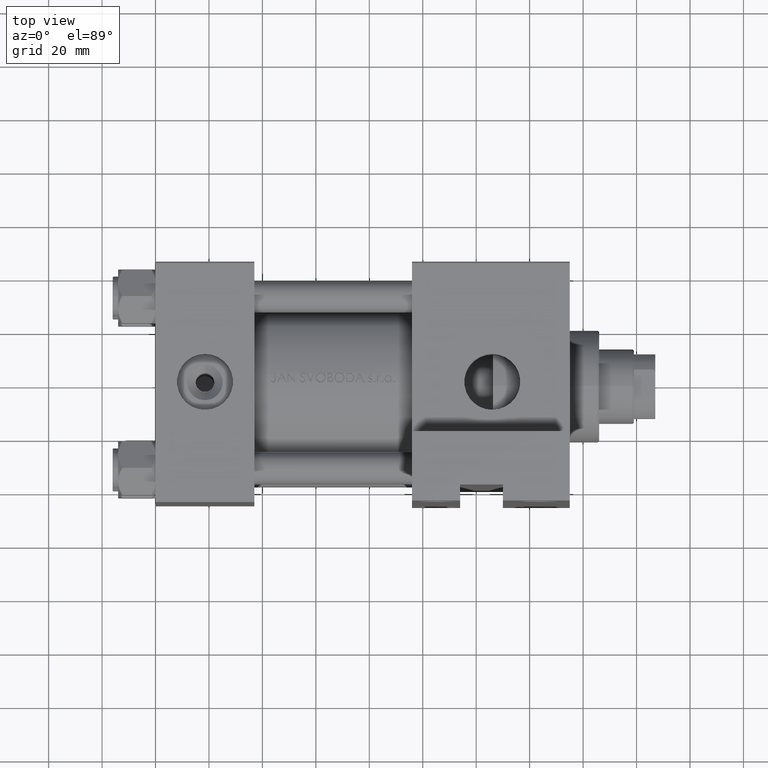
[diagram: clean part render]
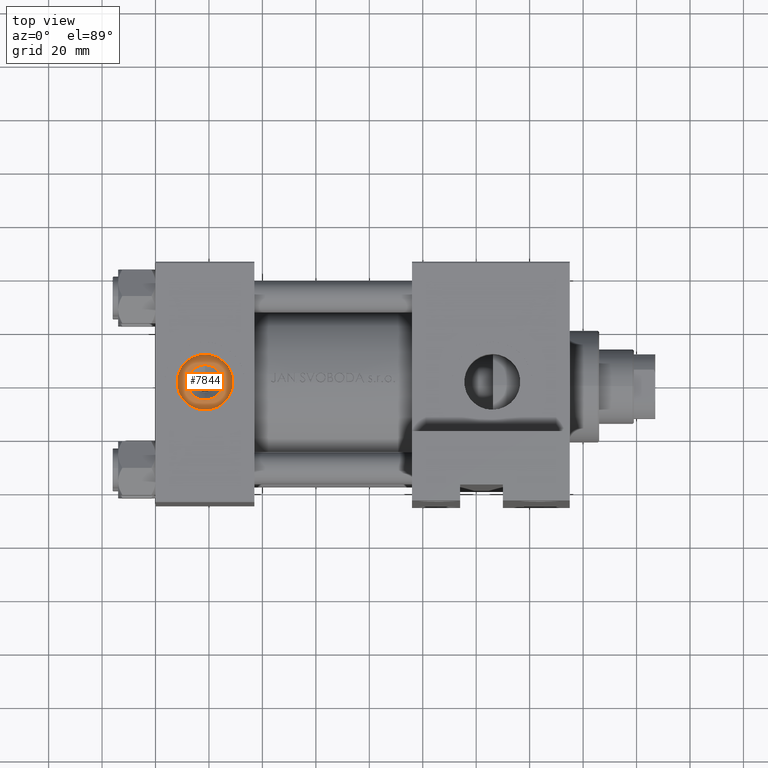
[diagram: same view with one face highlighted and labeled with its STEP entity id]
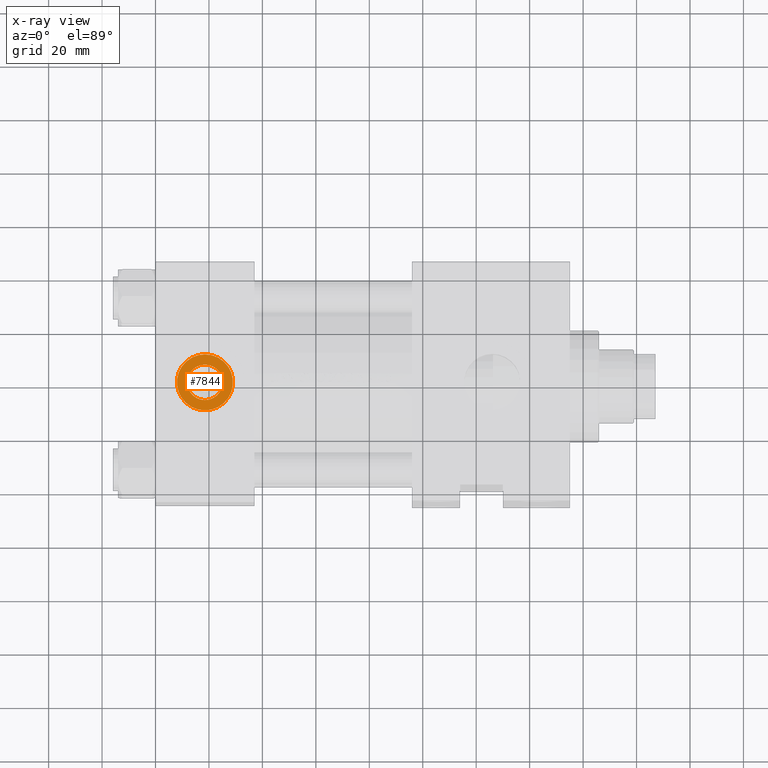
[diagram: x-ray of the same camera — body ghosted, the highlighted face saturated]
A machine part, top view. The second image highlights one B-rep face of the part: STEP entity #7844.
The next image is the same camera in x-ray: the body ghosted, the highlighted face saturated — about 0% of this face is hidden behind the body in this view.
In plain terms, the highlighted planar face has unit normal (0, -0, 1).
Its self-contained STEP definition (entity closure, byte-faithful):
#259 = DIRECTION ( 'NONE',  ( 0.000000000000000000, -1.000000000000000000, -8.673617379884036705E-17 ) ) ;
#517 = FACE_OUTER_BOUND ( 'NONE', #21989, .T. ) ;
#533 = DIRECTION ( 'NONE',  ( 0.000000000000000000, -1.000000000000000000, -8.673617379884036705E-17 ) ) ;
#837 = DIRECTION ( 'NONE',  ( 0.000000000000000000, -1.000000000000000000, -8.673617379884036705E-17 ) ) ;
#1323 = EDGE_CURVE ( 'NONE', #10725, #23349, #4697, .T. ) ;
#4087 = CARTESIAN_POINT ( 'NONE',  ( 18.50000000000000000, -34.10000000000000142, 10.47999999999999865 ) ) ;
#4517 = CARTESIAN_POINT ( 'NONE',  ( 18.50000000000000000, -34.10000000000000142, -2.524022657546255111E-15 ) ) ;
#4598 = CARTESIAN_POINT ( 'NONE',  ( 18.50000000000000000, -34.10000000000000142, -2.524022657546255111E-15 ) ) ;
#4697 = CIRCLE ( 'NONE', #47246, 10.48000000000000043 ) ;
#6940 = EDGE_CURVE ( 'NONE', #36870, #13799, #11525, .T. ) ;
#7844 = ADVANCED_FACE ( 'NONE', ( #45019, #517 ), #42257, .T. ) ;
#10725 = VERTEX_POINT ( 'NONE', #26998 ) ;
#11525 = CIRCLE ( 'NONE', #21928, 6.640000000000116920 ) ;
#11777 = EDGE_CURVE ( 'NONE', #13799, #36870, #21994, .T. ) ;
#11819 = ORIENTED_EDGE ( 'NONE', *, *, #11777, .T. ) ;
#12509 = EDGE_LOOP ( 'NONE', ( #11819, #22610 ) ) ;
#13306 = ORIENTED_EDGE ( 'NONE', *, *, #1323, .T. ) ;
#13799 = VERTEX_POINT ( 'NONE', #28139 ) ;
#15354 = CARTESIAN_POINT ( 'NONE',  ( 18.50000000000000000, -34.10000000000000142, 0.000000000000000000 ) ) ;
#15611 = DIRECTION ( 'NONE',  ( -0.000000000000000000, 1.000000000000000000, 8.673617379884036705E-17 ) ) ;
#16370 = AXIS2_PLACEMENT_3D ( 'NONE', #15354, #15611, #42779 ) ;
#21928 = AXIS2_PLACEMENT_3D ( 'NONE', #41116, #25767, #25006 ) ;
#21989 = EDGE_LOOP ( 'NONE', ( #13306, #35843 ) ) ;
#21994 = CIRCLE ( 'NONE', #16370, 6.640000000000116920 ) ;
#22610 = ORIENTED_EDGE ( 'NONE', *, *, #6940, .T. ) ;
#23349 = VERTEX_POINT ( 'NONE', #4087 ) ;
#25006 = DIRECTION ( 'NONE',  ( 0.000000000000000000, 0.000000000000000000, -1.000000000000000000 ) ) ;
#25767 = DIRECTION ( 'NONE',  ( -0.000000000000000000, 1.000000000000000000, 8.673617379884036705E-17 ) ) ;
#26449 = AXIS2_PLACEMENT_3D ( 'NONE', #42756, #533, #39459 ) ;
#26998 = CARTESIAN_POINT ( 'NONE',  ( 18.50000000000000000, -34.10000000000000142, -10.48000000000000220 ) ) ;
#28052 = CIRCLE ( 'NONE', #26449, 10.48000000000000043 ) ;
#28139 = CARTESIAN_POINT ( 'NONE',  ( 18.50000000000000000, -34.10000000000000142, -6.640000000000116032 ) ) ;
#31169 = DIRECTION ( 'NONE',  ( 0.000000000000000000, 8.673617379884036705E-17, -1.000000000000000000 ) ) ;
#35071 = EDGE_CURVE ( 'NONE', #23349, #10725, #28052, .T. ) ;
#35843 = ORIENTED_EDGE ( 'NONE', *, *, #35071, .T. ) ;
#36870 = VERTEX_POINT ( 'NONE', #48235 ) ;
#38562 = DIRECTION ( 'NONE',  ( 0.000000000000000000, 0.000000000000000000, -1.000000000000000000 ) ) ;
#39459 = DIRECTION ( 'NONE',  ( 0.000000000000000000, 0.000000000000000000, -1.000000000000000000 ) ) ;
#41116 = CARTESIAN_POINT ( 'NONE',  ( 18.50000000000000000, -34.10000000000000142, 0.000000000000000000 ) ) ;
#42257 = PLANE ( 'NONE',  #46886 ) ;
#42756 = CARTESIAN_POINT ( 'NONE',  ( 18.50000000000000000, -34.10000000000000142, -2.524022657546255111E-15 ) ) ;
#42779 = DIRECTION ( 'NONE',  ( 0.000000000000000000, 0.000000000000000000, -1.000000000000000000 ) ) ;
#45019 = FACE_BOUND ( 'NONE', #12509, .T. ) ;
#46886 = AXIS2_PLACEMENT_3D ( 'NONE', #4517, #259, #31169 ) ;
#47246 = AXIS2_PLACEMENT_3D ( 'NONE', #4598, #837, #38562 ) ;
#48235 = CARTESIAN_POINT ( 'NONE',  ( 18.50000000000000000, -34.10000000000000142, 6.640000000000117808 ) ) ;